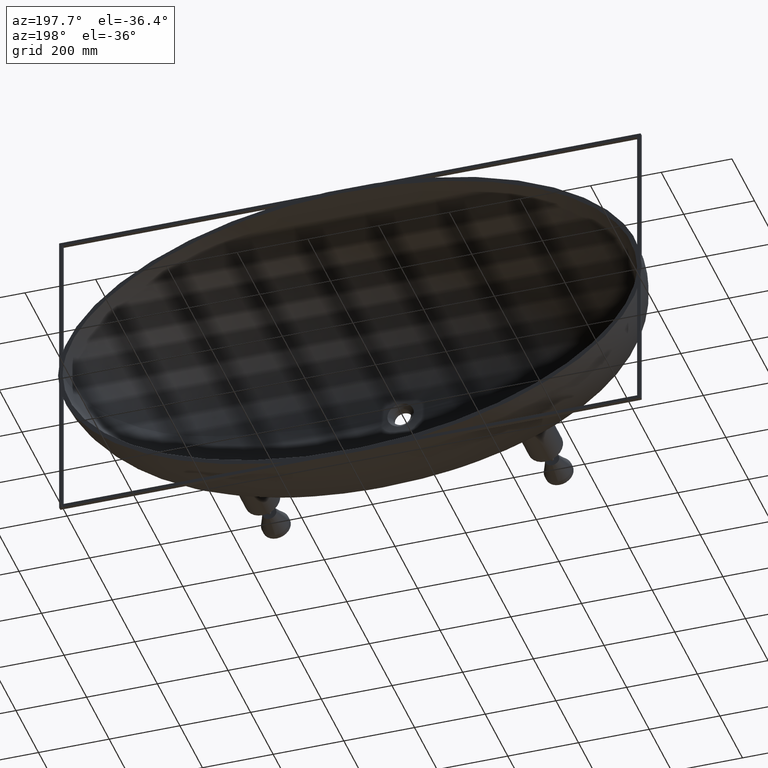
[diagram: clean part render]
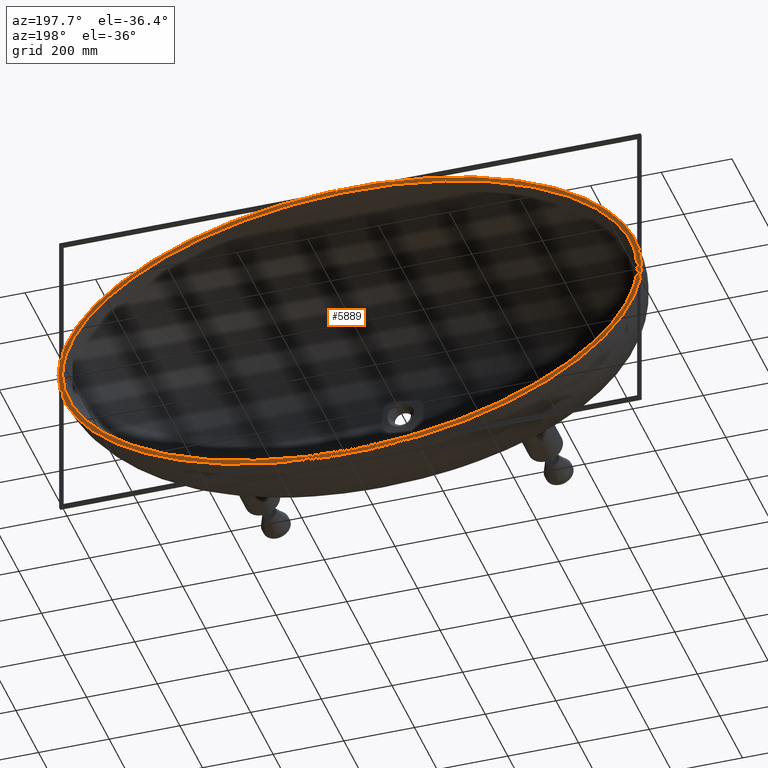
[diagram: same view with one face highlighted and labeled with its STEP entity id]
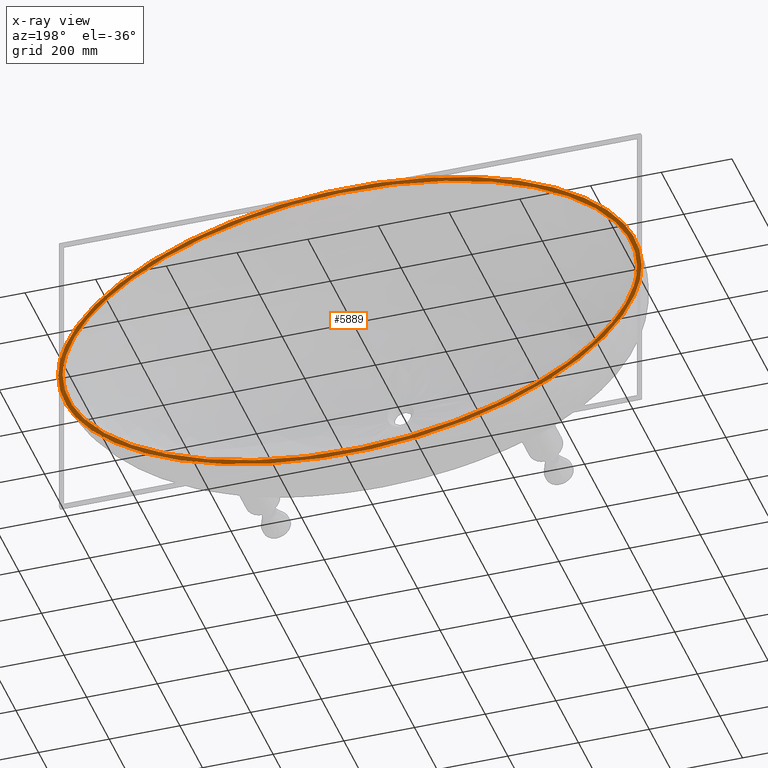
[diagram: x-ray of the same camera — body ghosted, the highlighted face saturated]
A machine part, auxiliary view. The second image highlights one B-rep face of the part: STEP entity #5889.
The next image is the same camera in x-ray: the body ghosted, the highlighted face saturated — about 0% of this face is hidden behind the body in this view.
In plain terms, the highlighted planar face has unit normal (-0, 1, 0).
Its self-contained STEP definition (entity closure, byte-faithful):
#51 = CARTESIAN_POINT ( 'NONE',  ( 638.9243610643725300, 3.921423732608520800E-014, -279.2628782434143200 ) ) ;
#135 = CARTESIAN_POINT ( 'NONE',  ( 388.2830390785371700, -3.252606517456288500E-015, -391.9663671362682200 ) ) ;
#147 = CARTESIAN_POINT ( 'NONE',  ( 778.1488945085268400, -7.568917010074882300E-014, 145.9518240305107500 ) ) ;
#215 = CARTESIAN_POINT ( 'NONE',  ( 84.47637734444256800, 1.946685000697724200E-013, -443.2662565158318000 ) ) ;
#300 = CARTESIAN_POINT ( 'NONE',  ( -211.0258075909684400, -1.453915113303062700E-013, -430.5099309524608800 ) ) ;
#381 = CARTESIAN_POINT ( 'NONE',  ( -519.6688351225064900, 9.204876444402010900E-014, -344.1266041277850100 ) ) ;
#398 = CARTESIAN_POINT ( 'NONE',  ( 776.6567206749597300, 1.291335609407061700E-013, 148.1837680807703900 ) ) ;
#466 = CARTESIAN_POINT ( 'NONE',  ( -671.8640632418805600, 1.001091299700912200E-013, -255.9587522581437900 ) ) ;
#549 = CARTESIAN_POINT ( 'NONE',  ( -787.2940190439617300, -1.027531433149461700E-012, -131.6973154153616300 ) ) ;
#633 = CARTESIAN_POINT ( 'NONE',  ( -825.5000000000000000, 3.697785493223492800E-029, -9.020562075079396900E-014 ) ) ;
#707 = CARTESIAN_POINT ( 'NONE',  ( 769.0865235351410500, 1.291335609407075800E-013, 159.2347709499249200 ) ) ;
#830 = CARTESIAN_POINT ( 'NONE',  ( 762.6816090044894700, 2.245314936581694800E-013, 167.7287642113126400 ) ) ;
#854 = ORIENTED_EDGE ( 'NONE', *, *, #20428, .F. ) ;
#888 = CARTESIAN_POINT ( 'NONE',  ( -797.3382716910023200, -3.755642444171877500E-013, 113.4096733855923300 ) ) ;
#937 = CARTESIAN_POINT ( 'NONE',  ( -728.5023967409761100, 0.0000000000000000000, 189.1202371007634600 ) ) ;
#1026 = CARTESIAN_POINT ( 'NONE',  ( 759.9659864049443700, 0.0000000000000000000, 151.1692347093767500 ) ) ;
#1065 = CARTESIAN_POINT ( 'NONE',  ( -825.2517813591537100, 1.242518162511270100E-012, 10.76159791638408000 ) ) ;
#1184 = CARTESIAN_POINT ( 'NONE',  ( 749.2796560355906200, 2.245314936581692000E-013, 184.1279338012110700 ) ) ;
#1481 = CARTESIAN_POINT ( 'NONE',  ( 742.2823194126497100, 6.152508515676409100E-014, 192.0328136103706000 ) ) ;
#1498 = ORIENTED_EDGE ( 'NONE', *, *, #21415, .T. ) ;
#1546 = CARTESIAN_POINT ( 'NONE',  ( 727.7677624212716400, 6.152508515676335900E-014, 207.3255930011599400 ) ) ;
#1869 = CARTESIAN_POINT ( 'NONE',  ( 807.1867075347555600, -7.007029234184359200E-013, -91.33779694833344800 ) ) ;
#1938 = ORIENTED_EDGE ( 'NONE', *, *, #9431, .F. ) ;
#1945 = CARTESIAN_POINT ( 'NONE',  ( 727.7176683573071600, -2.053080809202350700E-014, -207.3794612903130300 ) ) ;
#2027 = CARTESIAN_POINT ( 'NONE',  ( 618.7151436689303000, 1.279290800897117200E-013, -292.3007840433248200 ) ) ;
#2099 = FACE_OUTER_BOUND ( 'NONE', #17807, .T. ) ;
#2107 = CARTESIAN_POINT ( 'NONE',  ( 380.5977284007236100, -1.048152450250359800E-013, -394.1941923438074000 ) ) ;
#2182 = CARTESIAN_POINT ( 'NONE',  ( 21.20152455478699900, -1.187201378871627200E-014, -445.5152986556060500 ) ) ;
#2266 = CARTESIAN_POINT ( 'NONE',  ( -273.1555675873723300, -1.179069862577986100E-013, -419.9827692636932300 ) ) ;
#2352 = CARTESIAN_POINT ( 'NONE',  ( -543.9682955254099900, -5.395261060830923900E-014, -332.9625032621822200 ) ) ;
#2367 = CARTESIAN_POINT ( 'NONE',  ( 720.2505031098504600, -9.810166188509856900E-014, 214.7134538572979600 ) ) ;
#2439 = CARTESIAN_POINT ( 'NONE',  ( -696.7633391057277100, 8.915191176440979600E-014, -235.9557974924412900 ) ) ;
#2518 = CARTESIAN_POINT ( 'NONE',  ( -802.1992020487949700, -7.211765567865186100E-013, -103.3800326232273500 ) ) ;
#2915 = CARTESIAN_POINT ( 'NONE',  ( -593.5970504418641000, 0.0000000000000000000, 296.3062471289930500 ) ) ;
#3005 = CARTESIAN_POINT ( 'NONE',  ( 800.6131861182481100, 0.0000000000000000000, 74.87454044821913600 ) ) ;
#3085 = CARTESIAN_POINT ( 'NONE',  ( 704.7506869629731900, -9.810166188509671400E-014, 229.0264767028986300 ) ) ;
#3118 = CARTESIAN_POINT ( 'NONE',  ( 696.7675788502659800, 2.926939289896162700E-013, 235.9510904939582500 ) ) ;
#3783 = CARTESIAN_POINT ( 'NONE',  ( -819.5536356947581000, 2.390513324400031000E-013, 53.16680540343183000 ) ) ;
#3845 = CARTESIAN_POINT ( 'NONE',  ( 797.3851012665473900, -1.487452535816649200E-012, -113.3169023180222600 ) ) ;
#3920 = CARTESIAN_POINT ( 'NONE',  ( 704.5351703153647800, 2.084158448037096200E-013, -229.2190690986254300 ) ) ;
#3997 = CARTESIAN_POINT ( 'NONE',  ( 572.6716394735079800, -7.769663818574171700E-014, -318.7583341158683100 ) ) ;
#4028 = CARTESIAN_POINT ( 'NONE',  ( -812.5000000000000000, 0.0000000000000000000, -9.020562075079396900E-014 ) ) ;
#4072 = CARTESIAN_POINT ( 'NONE',  ( 354.9593886830235200, -1.732826122174963300E-013, -401.4182212450642700 ) ) ;
#4083 = CARTESIAN_POINT ( 'NONE',  ( -763.0544011824202900, 4.033105026703946100E-014, 167.2527923874282000 ) ) ;
#4146 = CARTESIAN_POINT ( 'NONE',  ( -21.16788563490014500, -1.115644035487586700E-013, -445.4028487832278500 ) ) ;
#4230 = CARTESIAN_POINT ( 'NONE',  ( -334.6501846052157100, 1.720628847734495500E-013, -406.5510437242429600 ) ) ;
#4314 = CARTESIAN_POINT ( 'NONE',  ( -591.4358675637258800, -2.205267218835520100E-013, -308.6097459937088800 ) ) ;
#4396 = CARTESIAN_POINT ( 'NONE',  ( -720.3775747676520500, 1.149745581944050500E-013, -214.5929278993268100 ) ) ;
#4476 = CARTESIAN_POINT ( 'NONE',  ( -808.3195744295608200, -4.809588599781479000E-013, -88.48996871297868000 ) ) ;
#4869 = CARTESIAN_POINT ( 'NONE',  ( -323.9319580293575300, 0.0000000000000000000, 398.9060634642181600 ) ) ;
#4958 = CARTESIAN_POINT ( 'NONE',  ( 812.5000000000000000, 0.0000000000000000000, 12.42180909409066900 ) ) ;
#5031 = CARTESIAN_POINT ( 'NONE',  ( -825.1093373260333700, 1.242518162511270300E-012, 13.45916058865412700 ) ) ;
#5250 = CARTESIAN_POINT ( 'NONE',  ( -825.5000000000000000, 3.697785493223492800E-029, -9.020562075079396900E-014 ) ) ;
#5376 = EDGE_LOOP ( 'NONE', ( #854, #1938 ) ) ;
#5749 = CARTESIAN_POINT ( 'NONE',  ( 680.3758781714831200, 2.926939289896167800E-013, 249.3772099265743500 ) ) ;
#5795 = CARTESIAN_POINT ( 'NONE',  ( 781.5308826153235500, 4.370029322133319300E-013, -141.0323995624442500 ) ) ;
#5808 = FACE_BOUND ( 'NONE', #5376, .T. ) ;
#5877 = CARTESIAN_POINT ( 'NONE',  ( 680.0643140338306700, 1.328079898658962800E-013, -249.6233372564875600 ) ) ;
#5889 = ADVANCED_FACE ( 'NONE', ( #5808, #2099 ), #11718, .T. ) ;
#5951 = CARTESIAN_POINT ( 'NONE',  ( 515.4814928873232700, 1.442937566306638100E-013, -346.2089224585374200 ) ) ;
#6032 = CARTESIAN_POINT ( 'NONE',  ( 293.1060575217488800, -3.394094900965851900E-013, -415.9740965487953900 ) ) ;
#6110 = CARTESIAN_POINT ( 'NONE',  ( -42.40175718080556800, 1.984089975648473100E-013, -444.9209649626387200 ) ) ;
#6125 = CARTESIAN_POINT ( 'NONE',  ( 671.9678853031942900, 3.537209587735358800E-015, 255.8793119166429900 ) ) ;
#6174 = CARTESIAN_POINT ( 'NONE',  ( -813.6559652682478800, -5.301164170720517300E-013, 73.69550218033030800 ) ) ;
#6190 = CARTESIAN_POINT ( 'NONE',  ( -395.4678017934094200, -4.065758146820477400E-016, -390.0233393288574500 ) ) ;
#6202 = CARTESIAN_POINT ( 'NONE',  ( 812.4999999999998900, 1.232595164407830900E-029, -4.597017211338538800E-014 ) ) ;
#6273 = CARTESIAN_POINT ( 'NONE',  ( -627.9475425986084900, -6.873164147200367900E-014, -286.5105975817907600 ) ) ;
#6365 = CARTESIAN_POINT ( 'NONE',  ( -742.5665431555401000, 2.738732804180946500E-013, -191.7217458844789900 ) ) ;
#6453 = CARTESIAN_POINT ( 'NONE',  ( -811.1530708444922800, 1.132560130477199900E-012, -80.91524278654101500 ) ) ;
#6471 = EDGE_CURVE ( 'NONE', #14854, #23764, #23525, .T. ) ;
#6833 = CARTESIAN_POINT ( 'NONE',  ( 661.2143119941398500, 3.537209587734500600E-015, 263.7647175719099000 ) ) ;
#6850 = CARTESIAN_POINT ( 'NONE',  ( -1.685391218337532600E-013, 0.0000000000000000000, 435.5957374718805100 ) ) ;
#6931 = CARTESIAN_POINT ( 'NONE',  ( -821.7544871164866400, 6.828415396596853000E-013, 42.73711164799402000 ) ) ;
#7018 = CARTESIAN_POINT ( 'NONE',  ( -810.0952947684272700, 2.890144178667458100E-013, 83.82460147496172500 ) ) ;
#7153 = CARTESIAN_POINT ( 'NONE',  ( 659.0513908987617200, -1.093079077772734800E-013, 265.3296604415580200 ) ) ;
#7411 = CARTESIAN_POINT ( 'NONE',  ( 654.7015736019312700, -1.093079077772729600E-013, 268.4357049742375200 ) ) ;
#7682 = CARTESIAN_POINT ( 'NONE',  ( 821.7755990938437700, -6.457999418433072900E-013, -42.61628319985253200 ) ) ;
#7696 = CARTESIAN_POINT ( 'NONE',  ( 652.5137756803073900, -6.312089522939046100E-014, 269.9774139058464500 ) ) ;
#7714 = CARTESIAN_POINT ( 'NONE',  ( 645.9302813623562500, -6.312089522939046100E-014, 274.5568848601449200 ) ) ;
#7765 = CARTESIAN_POINT ( 'NONE',  ( 769.3898149321771600, 1.921429019309442900E-012, -158.6122986344948600 ) ) ;
#7846 = CARTESIAN_POINT ( 'NONE',  ( 658.7324063786353500, 1.297078492789453400E-013, -265.5801813330347200 ) ) ;
#7859 = CARTESIAN_POINT ( 'NONE',  ( 641.5101693077919000, -2.608997002814805200E-013, 277.5521789196697000 ) ) ;
#7923 = CARTESIAN_POINT ( 'NONE',  ( 456.5444568458098600, -2.883435677725191500E-013, -369.7848041787152100 ) ) ;
#7937 = CARTESIAN_POINT ( 'NONE',  ( 628.1611832745575200, -2.608997002814812300E-013, 286.3737104951500200 ) ) ;
#7941 = B_SPLINE_CURVE_WITH_KNOTS ( 'NONE', 3,
 ( #18280, #16905, #16826, #16739, #16646, #16557, #16468, #16379, #16285, #16027, #15951, #15878, #15725, #15648, #15570, #15485, #15403, #15323, #15292, #15202, #15137, #15106, #15018, #14932, #14837 ),
 .UNSPECIFIED., .F., .F.,
 ( 4, 1, 1, 1, 1, 1, 1, 1, 1, 1, 1, 1, 1, 1, 1, 1, 1, 1, 1, 1, 1, 1, 4 ),
 ( 0.5000000000000000000, 0.5156250000000000000, 0.5312500000000000000, 0.5468750000000000000, 0.5625000000000001100, 0.5781250000000000000, 0.5937500000000000000, 0.6250000000000000000, 0.6562500000000000000, 0.6875000000000000000, 0.7187500000000000000, 0.7500000000000000000, 0.7812499999999998900, 0.8125000000000001100, 0.8437500000000000000, 0.8749999999999998900, 0.9062500000000001100, 0.9218750000000000000, 0.9375000000000000000, 0.9531250000000002200, 0.9687500000000001100, 0.9843750000000001100, 1.000000000000000000 ),
 .UNSPECIFIED. ) ;
#8000 = CARTESIAN_POINT ( 'NONE',  ( 230.8986594358406700, 1.993847795200837100E-013, -427.4646350448782100 ) ) ;
#8081 = CARTESIAN_POINT ( 'NONE',  ( -58.34897942213282100, -2.592327394412840600E-013, -444.3810824891687000 ) ) ;
#8158 = CARTESIAN_POINT ( 'NONE',  ( -455.5523673429009400, 3.336361135281019000E-013, -370.1433263000917000 ) ) ;
#8241 = CARTESIAN_POINT ( 'NONE',  ( -645.7623324204975000, 4.486564115016631700E-014, -274.6717658277729600 ) ) ;
#8331 = CARTESIAN_POINT ( 'NONE',  ( -759.7600882939142400, -1.069041553279073300E-012, -171.2895789506155200 ) ) ;
#8399 = CARTESIAN_POINT ( 'NONE',  ( 619.1438360334817600, -1.292911090688958200E-013, 292.0359248251826900 ) ) ;
#8416 = CARTESIAN_POINT ( 'NONE',  ( -815.3845940382274200, -2.137064125922550500E-015, -68.16067729612341000 ) ) ;
#8463 = CARTESIAN_POINT ( 'NONE',  ( 591.7677114369620300, -1.292911090688965800E-013, 308.4217410351312800 ) ) ;
#8481 = CARTESIAN_POINT ( 'NONE',  ( -812.5000000000000000, 2.465190328815661900E-029, -9.020562075079396900E-014 ) ) ;
#8658 = CARTESIAN_POINT ( 'NONE',  ( -824.5528991840722000, 1.611755150221808600E-012, 21.52330910202109800 ) ) ;
#8773 = ORIENTED_EDGE ( 'NONE', *, *, #6471, .T. ) ;
#8795 = CARTESIAN_POINT ( 'NONE',  ( 323.9319580293571300, 0.0000000000000000000, 398.9060634642181100 ) ) ;
#8833 = CARTESIAN_POINT ( 'NONE',  ( 573.0846318077456100, -2.145907149891938400E-013, 318.5441093818876100 ) ) ;
#9060 = CARTESIAN_POINT ( 'NONE',  ( 534.9816549496292700, -2.145907149891932100E-013, 337.4228382346290700 ) ) ;
#9080 = CARTESIAN_POINT ( 'NONE',  ( 515.5615767195047300, -3.133073227939989000E-013, 346.1788631771164500 ) ) ;
#9143 = CARTESIAN_POINT ( 'NONE',  ( 476.0614543133490300, -3.133073227939992500E-013, 362.4673827648563800 ) ) ;
#9272 = VERTEX_POINT ( 'NONE', #17104 ) ;
#9431 = EDGE_CURVE ( 'NONE', #13451, #9272, #7941, .T. ) ;
#9550 = CARTESIAN_POINT ( 'NONE',  ( 456.1534042596677000, -1.661268778790917700E-013, 369.9261590984029300 ) ) ;
#9613 = CARTESIAN_POINT ( 'NONE',  ( 815.2813119877542900, -1.205306708119188000E-012, -68.50522390613963400 ) ) ;
#9686 = CARTESIAN_POINT ( 'NONE',  ( 762.9361133765856900, -7.258280382163699400E-013, -167.1835271822338300 ) ) ;
#9702 = CARTESIAN_POINT ( 'NONE',  ( -802.0088033725186300, 9.612341643678607800E-013, 103.7966461820367100 ) ) ;
#9764 = CARTESIAN_POINT ( 'NONE',  ( 647.7958214233300400, -2.248364255191826800E-014, -273.2570974886214700 ) ) ;
#9847 = CARTESIAN_POINT ( 'NONE',  ( 416.3069502661427900, 2.341876692568689900E-014, -383.4034423827919800 ) ) ;
#9938 = CARTESIAN_POINT ( 'NONE',  ( 168.3590098544732700, -4.033232081646037400E-014, -436.0787039597369100 ) ) ;
#9958 = CARTESIAN_POINT ( 'NONE',  ( -749.3772777813111400, -1.511079672847361700E-012, 183.8173038219713100 ) ) ;
#10019 = CARTESIAN_POINT ( 'NONE',  ( -106.1255083800118100, 2.663884737796922300E-013, -441.8783359305813300 ) ) ;
#10099 = CARTESIAN_POINT ( 'NONE',  ( -500.0366666903052000, -4.147073309757042600E-015, -352.5849285928360400 ) ) ;
#10182 = CARTESIAN_POINT ( 'NONE',  ( -654.5528943278216000, -2.272148940350703200E-013, -268.5409384055003000 ) ) ;
#10197 = CARTESIAN_POINT ( 'NONE',  ( 416.0689482691437900, -1.661268778790918200E-013, 383.6404118166934700 ) ) ;
#10265 = CARTESIAN_POINT ( 'NONE',  ( -769.5166957825308600, 1.005650031023031900E-012, -158.4381580212156600 ) ) ;
#10349 = CARTESIAN_POINT ( 'NONE',  ( -821.8246150674464200, 1.741453152742750400E-012, -42.33896146097084300 ) ) ;
#10605 = CARTESIAN_POINT ( 'NONE',  ( 395.8912646144719900, -8.521829075736087600E-014, 389.8974307262878900 ) ) ;
#10658 = CARTESIAN_POINT ( 'NONE',  ( -800.6131861182482200, 0.0000000000000000000, 74.87454044821896600 ) ) ;
#10750 = CARTESIAN_POINT ( 'NONE',  ( 593.5970504418637600, 0.0000000000000000000, 296.3062471289931100 ) ) ;
#10768 = CARTESIAN_POINT ( 'NONE',  ( -811.0156397249593300, -5.301164170720517300E-013, 81.29899749366835200 ) ) ;
#10861 = CARTESIAN_POINT ( 'NONE',  ( 355.2911445668961500, -8.521829075736183500E-014, 401.3271436664083500 ) ) ;
#10976 = CARTESIAN_POINT ( 'NONE',  ( -747.6210738435263500, -9.401708372497941700E-014, 185.8461648456404000 ) ) ;
#11059 = DIRECTION ( 'NONE',  ( 1.000000000000000000, 0.0000000000000000000, 1.110223024625156200E-016 ) ) ;
#11122 = CARTESIAN_POINT ( 'NONE',  ( 334.8685189573369000, 1.621424348952065800E-013, 406.4989994128413300 ) ) ;
#11445 = CARTESIAN_POINT ( 'NONE',  ( 825.4999999999998900, 1.848892746611746400E-029, -4.597017211338538800E-014 ) ) ;
#11605 = CARTESIAN_POINT ( 'NONE',  ( 811.0264620544796800, -1.505270720895087700E-013, -81.26921172491249500 ) ) ;
#11620 = CARTESIAN_POINT ( 'NONE',  ( 293.7942618499821500, 1.621424348952056200E-013, 415.8281490917551700 ) ) ;
#11683 = CARTESIAN_POINT ( 'NONE',  ( 757.9418894281079700, -1.068152168684456700E-012, -173.5237329155084200 ) ) ;
#11718 = PLANE ( 'NONE',  #14702 ) ;
#11764 = CARTESIAN_POINT ( 'NONE',  ( 641.1531648800171300, 8.887747308949911200E-014, -277.7733343756905200 ) ) ;
#11842 = CARTESIAN_POINT ( 'NONE',  ( 395.9549076809571500, -3.252606517456514500E-015, -389.6953116972088700 ) ) ;
#11917 = CARTESIAN_POINT ( 'NONE',  ( 105.4992514249526700, 7.171997370991639600E-014, -441.9214283449935000 ) ) ;
#11934 = CARTESIAN_POINT ( 'NONE',  ( 273.1428827627407800, -1.727134060769392700E-013, 419.9865612754391000 ) ) ;
#11999 = CARTESIAN_POINT ( 'NONE',  ( -169.2662039029684100, -1.453915113303080900E-013, -435.9742699618544200 ) ) ;
#12080 = CARTESIAN_POINT ( 'NONE',  ( -514.7674290411454200, -7.163865854698048800E-014, -346.2869968518558600 ) ) ;
#12096 = CARTESIAN_POINT ( 'NONE',  ( 231.6244396450860600, -1.727134060769402800E-013, 427.3478394388578700 ) ) ;
#12160 = CARTESIAN_POINT ( 'NONE',  ( -661.0812550713321800, 1.001091299700897100E-013, -263.8614277685827000 ) ) ;
#12224 = CARTESIAN_POINT ( 'NONE',  ( 210.7573295830724200, 7.903833837419444700E-014, 430.5505014853903800 ) ) ;
#12241 = CARTESIAN_POINT ( 'NONE',  ( -781.6889579274869700, 3.614128649674188900E-013, -140.7868632643498200 ) ) ;
#12329 = CARTESIAN_POINT ( 'NONE',  ( -825.4999999999997700, -8.348777913588978900E-027, -10.72671456974527600 ) ) ;
#12345 = CARTESIAN_POINT ( 'NONE',  ( 168.8136705464548300, 7.903833837419300800E-014, 436.0279510827153300 ) ) ;
#12494 = CARTESIAN_POINT ( 'NONE',  ( -825.3111506050758000, -4.516187768857803200E-014, 9.410763904638290700 ) ) ;
#12585 = CARTESIAN_POINT ( 'NONE',  ( -769.4682921296183600, 4.040067637530415700E-013, 158.7076778429425900 ) ) ;
#12633 = CARTESIAN_POINT ( 'NONE',  ( -759.9659864049446000, 0.0000000000000000000, 151.1692347093764700 ) ) ;
#12676 = CARTESIAN_POINT ( 'NONE',  ( 147.7368082550586300, -3.756760527662328400E-014, 438.3013505501905300 ) ) ;
#12732 = CARTESIAN_POINT ( 'NONE',  ( 728.5023967409758800, 0.0000000000000000000, 189.1202371007636300 ) ) ;
#12851 = CARTESIAN_POINT ( 'NONE',  ( 121.2616560200432600, -3.756760527662242600E-014, 440.5712633752121400 ) ) ;
#12939 = CARTESIAN_POINT ( 'NONE',  ( 115.9601702466968300, -1.016439536705163400E-013, 440.9966469917135900 ) ) ;
#13115 = CARTESIAN_POINT ( 'NONE',  ( 105.3443126028224100, -1.016439536705160800E-013, 441.7903251156461700 ) ) ;
#13349 = CARTESIAN_POINT ( 'NONE',  ( 100.0376574542599400, -9.611452259083993000E-014, 442.1580363736665600 ) ) ;
#13451 = VERTEX_POINT ( 'NONE', #6202 ) ;
#13580 = CARTESIAN_POINT ( 'NONE',  ( 808.1816054924270200, -1.696356271597977100E-012, -88.84192005606550400 ) ) ;
#13664 = CARTESIAN_POINT ( 'NONE',  ( 742.3763921406321100, -2.053080809202271800E-014, -191.9326053971723000 ) ) ;
#13699 = CARTESIAN_POINT ( 'NONE',  ( 84.12697295272640500, -9.611452259084053600E-014, 443.1742814198654500 ) ) ;
#13746 = CARTESIAN_POINT ( 'NONE',  ( 627.7546262957594100, 3.921423732608487400E-014, -286.6339377843436300 ) ) ;
#13824 = CARTESIAN_POINT ( 'NONE',  ( 385.7214443457174900, -1.048152450250363900E-013, -392.7151721092704400 ) ) ;
#13857 = CARTESIAN_POINT ( 'NONE',  ( 73.52980450984604500, 2.520770051028856500E-014, 443.7361544037182200 ) ) ;
#13901 = CARTESIAN_POINT ( 'NONE',  ( 42.32751432991282300, 1.946685000697716100E-013, -445.0631953120812300 ) ) ;
#13955 = B_SPLINE_CURVE_WITH_KNOTS ( 'NONE', 3,
 ( #25081, #17435, #19332, #7682, #21236, #9613, #23181, #11605, #25159, #13580, #1869, #15586, #3845, #17506, #5795, #19405, #7765, #21312, #9686, #23257, #11683, #25227, #13664, #1945, #15664, #3920, #17583, #5877, #19477, #7846, #21399, #9764, #23337, #11764, #51, #13746, #2027, #15743, #3997, #17655, #5951, #19552, #7923, #21474, #9847, #23419, #11842, #135, #13824, #2107, #15821, #4072, #17725, #6032, #19630, #8000, #21546, #9938, #23503, #11917, #215, #13901, #2182, #15892, #4146, #17795, #6110, #19701, #8081, #21628, #10019, #23586, #11999, #300, #13983, #2266, #15965, #4230, #17881, #6190, #19781, #8158, #21711, #10099, #23666, #12080, #381, #14066, #2352, #16041, #4314, #17963, #6273, #19869, #8241, #21794, #10182, #23747, #12160, #466, #14154, #2439, #16120, #4396, #18040, #6365, #19947, #8331, #21875, #10265, #23842, #12241, #549, #14242, #2518, #16211, #4476, #18129, #6453, #20031, #8416, #21961, #10349, #23932, #12329, #633 ),
 .UNSPECIFIED., .F., .F.,
 ( 4, 2, 2, 2, 2, 2, 2, 2, 2, 2, 2, 2, 2, 2, 2, 2, 2, 2, 2, 2, 2, 2, 2, 2, 2, 2, 2, 2, 2, 2, 2, 2, 2, 2, 2, 2, 2, 2, 2, 2, 2, 2, 2, 2, 2, 2, 2, 2, 2, 2, 2, 2, 2, 2, 2, 2, 2, 2, 2, 2, 2, 2, 4 ),
 ( 6.162975822039154000E-033, 0.03195403933798911900, 0.06390807867597825300, 0.07988509834497283000, 0.08787360817947016700, 0.09586211801396746200, 0.1278161573519565600, 0.1597701966899456300, 0.1757472163589400800, 0.1837357261934373100, 0.1917242360279345400, 0.2236782753659235500, 0.2556323147039125700, 0.2875863540419016400, 0.3195403933798906500, 0.3355174130488849900, 0.3435059228833822200, 0.3514944327178794500, 0.3834484720558688500, 0.4473565507318472700, 0.5112646294078256900, 0.5751727080838041600, 0.6071267474217932900, 0.6231037670907878500, 0.6310922769252850200, 0.6390807867597821900, 0.7029888654357605600, 0.7668969441117388100, 0.8308050227877169500, 0.8947131014636952000, 0.9586211801396734600, 1.022529258815651600, 1.054483298153640700, 1.070460317822635300, 1.086437337491629900, 1.150345416167608100, 1.214253494843585900, 1.278161573519563900, 1.342069652195542200, 1.405977730871520700, 1.469885809547498900, 1.533793888223477200, 1.549770907892471700, 1.565747927561466500, 1.597701966899455900, 1.661610045575434600, 1.693564084913423900, 1.709541104582418700, 1.717529614416916300, 1.725518124251413700, 1.757472163589403100, 1.789426202927392600, 1.821380242265382000, 1.853334281603371300, 1.869311301272365900, 1.885288320941360200, 1.917242360279349100, 1.949196399617338000, 1.957184909451835200, 1.965173419286332600, 1.981150438955327200, 2.013104478293315800, 2.045058517631305000 ),
 .UNSPECIFIED. ) ;
#13983 = CARTESIAN_POINT ( 'NONE',  ( -231.8049359694440200, -1.179069862577986100E-013, -427.3173729705915200 ) ) ;
#14066 = CARTESIAN_POINT ( 'NONE',  ( -534.3026544291447000, 9.204876444401864500E-014, -337.5250329541224200 ) ) ;
#14154 = CARTESIAN_POINT ( 'NONE',  ( -680.3015482589655700, 8.915191176440969500E-014, -249.4368518822604100 ) ) ;
#14242 = CARTESIAN_POINT ( 'NONE',  ( -797.5491449031281900, -1.027531433149457300E-012, -112.9939021802814700 ) ) ;
#14310 = CARTESIAN_POINT ( 'NONE',  ( 41.76768721925358100, 2.520770051028796900E-014, 445.0804268036712300 ) ) ;
#14574 = CARTESIAN_POINT ( 'NONE',  ( 20.63206792672306400, -7.838781707070272800E-014, 445.5221589555770300 ) ) ;
#14620 = CARTESIAN_POINT ( 'NONE',  ( -676.6033954332068600, 0.0000000000000000000, 238.5028095780793900 ) ) ;
#14702 = AXIS2_PLACEMENT_3D ( 'NONE', #4028, #17375, #11059 ) ;
#14712 = CARTESIAN_POINT ( 'NONE',  ( 783.9352188932701900, 0.0000000000000000000, 112.9219503817796800 ) ) ;
#14837 = CARTESIAN_POINT ( 'NONE',  ( -812.5000000000000000, 2.465190328815661900E-029, -9.020562075079396900E-014 ) ) ;
#14854 = VERTEX_POINT ( 'NONE', #23950 ) ;
#14908 = CARTESIAN_POINT ( 'NONE',  ( -21.56197284062006500, -7.838781707070154100E-014, 445.5089588128566900 ) ) ;
#14932 = CARTESIAN_POINT ( 'NONE',  ( -812.5000000000000000, 0.0000000000000000000, -12.42180909409075300 ) ) ;
#15018 = CARTESIAN_POINT ( 'NONE',  ( -810.3672761930107500, 0.0000000000000000000, -37.26542728227217100 ) ) ;
#15084 = CARTESIAN_POINT ( 'NONE',  ( -807.1744417171059900, 9.612341643678615800E-013, 91.36839929772266100 ) ) ;
#15106 = CARTESIAN_POINT ( 'NONE',  ( -800.6131861182481100, 0.0000000000000000000, -74.87454044821906500 ) ) ;
#15107 = CARTESIAN_POINT ( 'NONE',  ( -42.62039835474715900, 1.772670552013754600E-014, 445.0540734354871700 ) ) ;
#15137 = CARTESIAN_POINT ( 'NONE',  ( -783.9352188932703000, 0.0000000000000000000, -112.9219503817795000 ) ) ;
#15202 = CARTESIAN_POINT ( 'NONE',  ( -759.9659864049444900, 0.0000000000000000000, -151.1692347093766100 ) ) ;
#15292 = CARTESIAN_POINT ( 'NONE',  ( -728.5023967409758800, 0.0000000000000000000, -189.1202371007634900 ) ) ;
#15323 = CARTESIAN_POINT ( 'NONE',  ( -676.6033954332068600, 0.0000000000000000000, -238.5028095780795600 ) ) ;
#15403 = CARTESIAN_POINT ( 'NONE',  ( -593.5970504418636400, 0.0000000000000000000, -296.3062471289930500 ) ) ;
#15485 = CARTESIAN_POINT ( 'NONE',  ( -468.7161643363668900, 0.0000000000000000000, -354.7800054689085400 ) ) ;
#15570 = CARTESIAN_POINT ( 'NONE',  ( -323.9319580293571300, 0.0000000000000000000, -398.9060634642182800 ) ) ;
#15586 = CARTESIAN_POINT ( 'NONE',  ( 802.0423634999726800, -7.007029234184365300E-013, -103.7202246795437900 ) ) ;
#15600 = CARTESIAN_POINT ( 'NONE',  ( -84.66068501055878000, 1.772670552013855600E-014, 443.2549957978795300 ) ) ;
#15648 = CARTESIAN_POINT ( 'NONE',  ( -165.4508975673361100, 0.0000000000000000000, -426.3085250562386400 ) ) ;
#15664 = CARTESIAN_POINT ( 'NONE',  ( 720.1378060629959900, 2.084158448037097400E-013, -214.8238106783531700 ) ) ;
#15725 = CARTESIAN_POINT ( 'NONE',  ( 3.057794233543944600E-014, 0.0000000000000000000, -435.5957374718805100 ) ) ;
#15743 = CARTESIAN_POINT ( 'NONE',  ( 591.3146664240442800, 1.279290800897118900E-013, -308.6757646072748600 ) ) ;
#15821 = CARTESIAN_POINT ( 'NONE',  ( 378.0348240635742600, -1.732826122174959700E-013, -394.9246435519814300 ) ) ;
#15878 = CARTESIAN_POINT ( 'NONE',  ( 165.4508975673363100, 0.0000000000000000000, -426.3085250562386400 ) ) ;
#15892 = CARTESIAN_POINT ( 'NONE',  ( -10.56573389605923200, -1.187201378871605300E-014, -445.5157978176645200 ) ) ;
#15907 = CARTESIAN_POINT ( 'NONE',  ( -105.6425479602641500, -2.195509399283152300E-013, 441.9108245380830900 ) ) ;
#15951 = CARTESIAN_POINT ( 'NONE',  ( 323.9319580293571900, 0.0000000000000000000, -398.9060634642180500 ) ) ;
#15965 = CARTESIAN_POINT ( 'NONE',  ( -293.7271156407141500, 1.720628847734516200E-013, -415.8409284764577500 ) ) ;
#16027 = CARTESIAN_POINT ( 'NONE',  ( 468.7161643363668900, 0.0000000000000000000, -354.7800054689085400 ) ) ;
#16041 = CARTESIAN_POINT ( 'NONE',  ( -572.6778164774266300, -5.395261060830955500E-014, -318.7606059473189900 ) ) ;
#16120 = CARTESIAN_POINT ( 'NONE',  ( -704.7870675554729600, 1.149745581944040900E-013, -228.9960324567421700 ) ) ;
#16138 = CARTESIAN_POINT ( 'NONE',  ( -147.5284713558863200, -2.195509399283148000E-013, 438.3187940508692600 ) ) ;
#16211 = CARTESIAN_POINT ( 'NONE',  ( -807.3280865505544200, -7.211765567865201200E-013, -90.98733399251160800 ) ) ;
#16285 = CARTESIAN_POINT ( 'NONE',  ( 593.5970504418639800, 0.0000000000000000000, -296.3062471289930500 ) ) ;
#16287 = CARTESIAN_POINT ( 'NONE',  ( -168.4324717992532200, -8.001412032943053000E-014, 436.0702378846668800 ) ) ;
#16379 = CARTESIAN_POINT ( 'NONE',  ( 676.6033954332066300, 0.0000000000000000000, -238.5028095780793400 ) ) ;
#16468 = CARTESIAN_POINT ( 'NONE',  ( 728.5023967409760000, 0.0000000000000000000, -189.1202371007635700 ) ) ;
#16470 = CARTESIAN_POINT ( 'NONE',  ( -210.1597790319566700, -8.001412032943036600E-014, 430.6358564329144100 ) ) ;
#16536 = CARTESIAN_POINT ( 'NONE',  ( -230.9832094976754300, 4.065758146820613200E-014, 427.4514676674332900 ) ) ;
#16557 = CARTESIAN_POINT ( 'NONE',  ( 759.9659864049444900, 0.0000000000000000000, -151.1692347093764700 ) ) ;
#16606 = CARTESIAN_POINT ( 'NONE',  ( -468.7161643363670000, 0.0000000000000000000, 354.7800054689083700 ) ) ;
#16646 = CARTESIAN_POINT ( 'NONE',  ( 783.9352188932701900, 0.0000000000000000000, -112.9219503817794000 ) ) ;
#16701 = CARTESIAN_POINT ( 'NONE',  ( 810.3672761930109800, 0.0000000000000000000, 37.26542728227220600 ) ) ;
#16739 = CARTESIAN_POINT ( 'NONE',  ( 800.6131861182478800, 0.0000000000000000000, -74.87454044821896600 ) ) ;
#16826 = CARTESIAN_POINT ( 'NONE',  ( 810.3672761930109800, 0.0000000000000000000, -37.26542728227207800 ) ) ;
#16905 = CARTESIAN_POINT ( 'NONE',  ( 812.5000000000000000, 0.0000000000000000000, -12.42180909409076000 ) ) ;
#17104 = CARTESIAN_POINT ( 'NONE',  ( -812.5000000000000000, 2.465190328815661900E-029, -9.020562075079396900E-014 ) ) ;
#17135 = CARTESIAN_POINT ( 'NONE',  ( -272.5456571929281000, 4.065758146820588000E-014, 420.1022175021345200 ) ) ;
#17375 = DIRECTION ( 'NONE',  ( -0.0000000000000000000, 1.000000000000000000, 0.0000000000000000000 ) ) ;
#17435 = CARTESIAN_POINT ( 'NONE',  ( 825.5000000000000000, 1.000937215382823200E-013, -10.82083299571365700 ) ) ;
#17506 = CARTESIAN_POINT ( 'NONE',  ( 787.1293771046080100, -1.487452535816647200E-012, -131.9729990526927800 ) ) ;
#17583 = CARTESIAN_POINT ( 'NONE',  ( 696.5118216303633300, 1.328079898658964100E-013, -236.1693372742893200 ) ) ;
#17655 = CARTESIAN_POINT ( 'NONE',  ( 534.7552128229788200, -7.769663818574287800E-014, -337.5252681925478000 ) ) ;
#17725 = CARTESIAN_POINT ( 'NONE',  ( 334.3819698792315800, -3.394094900965872100E-013, -406.6195815031562700 ) ) ;
#17739 = CARTESIAN_POINT ( 'NONE',  ( -754.5758770985363500, 4.033105026703818000E-014, 177.6516970192909600 ) ) ;
#17795 = CARTESIAN_POINT ( 'NONE',  ( -37.09082445958044600, -1.115644035487584100E-013, -445.0627752413852800 ) ) ;
#17807 = EDGE_LOOP ( 'NONE', ( #8773, #1498 ) ) ;
#17813 = CARTESIAN_POINT ( 'NONE',  ( -825.4531500162091800, -4.516187768857817700E-014, 5.368144164695845400 ) ) ;
#17881 = CARTESIAN_POINT ( 'NONE',  ( -355.0014607591251100, -4.065758146832905900E-016, -401.4018804631564900 ) ) ;
#17963 = CARTESIAN_POINT ( 'NONE',  ( -618.9032851946122900, -2.205267218835509000E-013, -292.1850971906121700 ) ) ;
#18040 = CARTESIAN_POINT ( 'NONE',  ( -727.9449169374057600, 2.738732804181002600E-013, -207.1501846126290900 ) ) ;
#18109 = CARTESIAN_POINT ( 'NONE',  ( -293.2847014360569900, -4.042176749569076900E-013, 415.9376698693566800 ) ) ;
#18129 = CARTESIAN_POINT ( 'NONE',  ( -810.2313370212190200, -4.809588599781477000E-013, -83.45614029656262300 ) ) ;
#18280 = CARTESIAN_POINT ( 'NONE',  ( 812.4999999999998900, 1.232595164407830900E-029, -4.597017211338538800E-014 ) ) ;
#18283 = CARTESIAN_POINT ( 'NONE',  ( -324.3249035782427000, -4.042176749569074300E-013, 408.8967875315619300 ) ) ;
#18403 = CARTESIAN_POINT ( 'NONE',  ( -812.5000000000000000, 0.0000000000000000000, 12.42180909409066000 ) ) ;
#18478 = CARTESIAN_POINT ( 'NONE',  ( -334.6601992900348300, -9.896055329361523800E-014, 406.4169687368017200 ) ) ;
#18493 = CARTESIAN_POINT ( 'NONE',  ( -165.4508975673365100, 0.0000000000000000000, 426.3085250562386400 ) ) ;
#18580 = CARTESIAN_POINT ( 'NONE',  ( 812.4999999999998900, 1.232595164407830900E-029, -4.597017211338538800E-014 ) ) ;
#18596 = CARTESIAN_POINT ( 'NONE',  ( -350.1452338277538800, -9.896055329361391200E-014, 402.4892244255560200 ) ) ;
#18685 = CARTESIAN_POINT ( 'NONE',  ( -781.4767448431259700, 4.040067637530427800E-013, 141.1155602325179600 ) ) ;
#18872 = CARTESIAN_POINT ( 'NONE',  ( -355.3071980197815400, 1.102633609417752800E-013, 401.1444140144615700 ) ) ;
#19026 = CARTESIAN_POINT ( 'NONE',  ( -752.8554794895569600, -1.511079672847358500E-012, 179.7191721496732300 ) ) ;
#19045 = CARTESIAN_POINT ( 'NONE',  ( -365.6008532372048300, 1.102633609417762300E-013, 398.3904154462246700 ) ) ;
#19131 = CARTESIAN_POINT ( 'NONE',  ( -370.7341074470170400, 2.933037927116405300E-013, 396.9808796138929100 ) ) ;
#19209 = CARTESIAN_POINT ( 'NONE',  ( -396.3316255323181300, 2.933037927116413900E-013, 389.7683939703430800 ) ) ;
#19271 = CARTESIAN_POINT ( 'NONE',  ( -416.5903392171475200, 3.504683522559457500E-014, 383.4727235268180200 ) ) ;
#19332 = CARTESIAN_POINT ( 'NONE',  ( 824.7357058659705400, -6.457999418433072900E-013, -21.50477915115259000 ) ) ;
#19405 = CARTESIAN_POINT ( 'NONE',  ( 772.5039835323438000, 4.370029322133322300E-013, -154.2623627689263500 ) ) ;
#19477 = CARTESIAN_POINT ( 'NONE',  ( 671.6407038210171500, 1.297078492789455400E-013, -256.1276803596328500 ) ) ;
#19552 = CARTESIAN_POINT ( 'NONE',  ( 476.3768310179105500, 1.442937566306645500E-013, -362.3402788473212000 ) ) ;
#19630 = CARTESIAN_POINT ( 'NONE',  ( 272.4076950470781100, 1.993847795200842700E-013, -420.1283861538440200 ) ) ;
#19701 = CARTESIAN_POINT ( 'NONE',  ( -53.03022957188690600, 1.984089975648473100E-013, -444.5801447024486500 ) ) ;
#19713 = CARTESIAN_POINT ( 'NONE',  ( -456.6358388097145800, 3.504683522559393100E-014, 369.7501331284732400 ) ) ;
#19766 = CARTESIAN_POINT ( 'NONE',  ( -476.4221342947709000, -6.513344551206635100E-014, 362.3220375903425700 ) ) ;
#19781 = CARTESIAN_POINT ( 'NONE',  ( -415.5830508543315900, 3.336361135281042200E-013, -383.7948037292356400 ) ) ;
#19869 = CARTESIAN_POINT ( 'NONE',  ( -641.3314751857171800, -6.873164147200346400E-014, -277.6723464808670200 ) ) ;
#19947 = CARTESIAN_POINT ( 'NONE',  ( -749.6209189209352000, -1.069041553279067300E-012, -183.7361475040592300 ) ) ;
#19964 = CARTESIAN_POINT ( 'NONE',  ( -825.5000000000000000, 2.670622856216954000E-029, 2.680452603408199200 ) ) ;
#20031 = CARTESIAN_POINT ( 'NONE',  ( -813.7915845680016700, 1.132560130477199700E-012, -73.27789301329593700 ) ) ;
#20102 = CARTESIAN_POINT ( 'NONE',  ( -515.4718432620208000, -6.513344551206707000E-014, 346.2124555527556700 ) ) ;
#20273 = CARTESIAN_POINT ( 'NONE',  ( -787.0723003482312400, -3.755642444171892600E-013, 132.0691658915045800 ) ) ;
#20408 = CARTESIAN_POINT ( 'NONE',  ( 165.4508975673363100, 0.0000000000000000000, 426.3085250562388100 ) ) ;
#20428 = EDGE_CURVE ( 'NONE', #9272, #13451, #23095, .T. ) ;
#21041 = CARTESIAN_POINT ( 'NONE',  ( -534.7366142376560000, 9.883858054921017700E-014, 337.5342230761998500 ) ) ;
#21236 = CARTESIAN_POINT ( 'NONE',  ( 819.5832142099474100, -1.205306708119188200E-012, -53.04445501178825100 ) ) ;
#21237 = CARTESIAN_POINT ( 'NONE',  ( 825.4999999999998900, 1.848892746611746400E-029, -4.597017211338538800E-014 ) ) ;
#21312 = CARTESIAN_POINT ( 'NONE',  ( 764.5683132707653200, 1.921429019309444600E-012, -165.0514369668964900 ) ) ;
#21314 = CARTESIAN_POINT ( 'NONE',  ( 825.5000000000001100, 1.000937215382836800E-013, 2.703971452378708000 ) ) ;
#21346 = CARTESIAN_POINT ( 'NONE',  ( -825.0263234762670700, 1.611755150221809000E-012, 14.80533528409630300 ) ) ;
#21399 = CARTESIAN_POINT ( 'NONE',  ( 654.3840657360800600, -2.248364255191797800E-014, -268.6802407913188500 ) ) ;
#21400 = CARTESIAN_POINT ( 'NONE',  ( 825.4522539470225400, -2.875765529690137100E-014, 5.405592834652507500 ) ) ;
#21415 = EDGE_CURVE ( 'NONE', #23764, #14854, #13955, .T. ) ;
#21430 = CARTESIAN_POINT ( 'NONE',  ( -808.1751973549015700, 2.890144178667453100E-013, 88.85825603271015900 ) ) ;
#21474 = CARTESIAN_POINT ( 'NONE',  ( 426.4140696216920200, -2.883435677725199000E-013, -380.1046790557716700 ) ) ;
#21546 = CARTESIAN_POINT ( 'NONE',  ( 210.0879532454237100, -4.033232081646102400E-014, -430.6463081669254500 ) ) ;
#21547 = CARTESIAN_POINT ( 'NONE',  ( 825.2621853673263100, -2.875765529690016600E-014, 10.79267008651320300 ) ) ;
#21628 = CARTESIAN_POINT ( 'NONE',  ( -84.94653358837322800, -2.592327394412841600E-013, -443.2423616343627400 ) ) ;
#21630 = CARTESIAN_POINT ( 'NONE',  ( 825.1198630854553400, -3.194780636938643800E-014, 13.48005673670534000 ) ) ;
#21711 = CARTESIAN_POINT ( 'NONE',  ( -475.4062476402436900, -4.147073309759458900E-015, -362.7195287074772000 ) ) ;
#21713 = CARTESIAN_POINT ( 'NONE',  ( 824.5525612866429100, -3.194780636938983900E-014, 21.52395967973333100 ) ) ;
#21726 = CARTESIAN_POINT ( 'NONE',  ( -572.6736905184648100, 9.883858054921002500E-014, 318.7575694147620300 ) ) ;
#21794 = CARTESIAN_POINT ( 'NONE',  ( -652.3605667768181300, 4.486564115016451200E-014, -270.0849064024895900 ) ) ;
#21796 = CARTESIAN_POINT ( 'NONE',  ( 823.9872025160046900, -7.502753148982544100E-013, 26.86221320170596600 ) ) ;
#21875 = CARTESIAN_POINT ( 'NONE',  ( -763.0658738856512900, 1.005650031023035100E-012, -167.0624771620510400 ) ) ;
#21877 = CARTESIAN_POINT ( 'NONE',  ( 822.4914601479227900, -7.502753148982602700E-013, 37.49123199795267400 ) ) ;
#21892 = CARTESIAN_POINT ( 'NONE',  ( -591.3463516789458900, 1.093688941494741600E-014, 308.6600012441810500 ) ) ;
#21961 = CARTESIAN_POINT ( 'NONE',  ( -819.6550132216575500, -2.137064125931115500E-015, -52.73044312118895500 ) ) ;
#22071 = CARTESIAN_POINT ( 'NONE',  ( -614.2427661802819300, 1.093688941494682200E-014, 294.9727492112640400 ) ) ;
#22141 = CARTESIAN_POINT ( 'NONE',  ( 821.5614550559652100, -1.142236634866601300E-013, 42.78204651425392100 ) ) ;
#22213 = CARTESIAN_POINT ( 'NONE',  ( -618.7997798727498100, -2.948487808074321700E-013, 292.1819176907403100 ) ) ;
#22232 = CARTESIAN_POINT ( 'NONE',  ( 819.8989082639964200, -1.142236634866709800E-013, 50.68346253117062600 ) ) ;
#22248 = CARTESIAN_POINT ( 'NONE',  ( -625.6002320610286900, -2.948487808074322700E-013, 287.9116087034764700 ) ) ;
#22261 = CARTESIAN_POINT ( 'NONE',  ( -810.3672761930107500, 0.0000000000000000000, 37.26542728227206400 ) ) ;
#22338 = CARTESIAN_POINT ( 'NONE',  ( -627.8594214548688800, -2.762682660764685900E-014, 286.4752571244389400 ) ) ;
#22352 = CARTESIAN_POINT ( 'NONE',  ( 468.7161643363669400, 0.0000000000000000000, 354.7800054689085400 ) ) ;
#22627 = CARTESIAN_POINT ( 'NONE',  ( -632.3560418080654700, -2.762682660764626300E-014, 283.5802393557229400 ) ) ;
#22811 = CARTESIAN_POINT ( 'NONE',  ( -634.5944104258028300, 6.240938755369690400E-015, 282.1209859616316700 ) ) ;
#23042 = CARTESIAN_POINT ( 'NONE',  ( -823.9873975207726700, 6.828415396596848000E-013, 26.85640347916091400 ) ) ;
#23095 = B_SPLINE_CURVE_WITH_KNOTS ( 'NONE', 3,
 ( #8481, #18403, #22261, #10658, #24231, #12633, #937, #14620, #2915, #16606, #4869, #18493, #6850, #20408, #8795, #22352, #10750, #24322, #12732, #1026, #14712, #3005, #16701, #4958, #18580 ),
 .UNSPECIFIED., .F., .F.,
 ( 4, 1, 1, 1, 1, 1, 1, 1, 1, 1, 1, 1, 1, 1, 1, 1, 1, 1, 1, 1, 1, 1, 4 ),
 ( 0.0000000000000000000, 0.01562500000000000000, 0.03125000000000000000, 0.04687500000000000000, 0.06250000000000000000, 0.07812500000000000000, 0.09375000000000000000, 0.1250000000000000000, 0.1562500000000000000, 0.1875000000000000000, 0.2187500000000000000, 0.2500000000000000000, 0.2812500000000000000, 0.3125000000000000000, 0.3437500000000000000, 0.3750000000000000000, 0.4062500000000000000, 0.4218750000000000000, 0.4375000000000000000, 0.4531249999999998900, 0.4687500000000000000, 0.4843750000000000000, 0.5000000000000000000 ),
 .UNSPECIFIED. ) ;
#23115 = CARTESIAN_POINT ( 'NONE',  ( -815.2552028014980600, 2.390513324400036000E-013, 68.59092002327055600 ) ) ;
#23181 = CARTESIAN_POINT ( 'NONE',  ( 813.6782515959904500, -1.505270720895086100E-013, -73.62852859451403700 ) ) ;
#23182 = CARTESIAN_POINT ( 'NONE',  ( 819.3000641592333300, -1.755877700318002100E-012, 53.31145754601780600 ) ) ;
#23196 = CARTESIAN_POINT ( 'NONE',  ( -645.7357100511289900, 6.240938755369770900E-015, 274.7650092207291000 ) ) ;
#23257 = CARTESIAN_POINT ( 'NONE',  ( 759.6228436496533000, -7.258280382163668100E-013, -171.4198115223162500 ) ) ;
#23258 = CARTESIAN_POINT ( 'NONE',  ( 818.0137372293777400, -1.755877700318001100E-012, 58.55591603813611800 ) ) ;
#23337 = CARTESIAN_POINT ( 'NONE',  ( 645.5887799427487200, 8.887747308949935200E-014, -274.7705059762059800 ) ) ;
#23338 = CARTESIAN_POINT ( 'NONE',  ( 817.3254813682318600, 1.145120782051948100E-013, 61.17467238313594200 ) ) ;
#23419 = CARTESIAN_POINT ( 'NONE',  ( 401.0544090012127200, 2.341876692568689900E-014, -388.1478313794456800 ) ) ;
#23503 = CARTESIAN_POINT ( 'NONE',  ( 147.4406084038009800, 7.171997370991611800E-014, -438.3280046338060200 ) ) ;
#23505 = CARTESIAN_POINT ( 'NONE',  ( 813.6878728019348700, 1.145120782052015000E-013, 74.16061067091507700 ) ) ;
#23525 = B_SPLINE_CURVE_WITH_KNOTS ( 'NONE', 3,
 ( #5250, #19964, #17813, #12494, #1065, #5031, #21346, #8658, #23042, #6931, #3783, #23115, #6174, #10768, #7018, #21430, #15084, #9702, #888, #20273, #18685, #12585, #4083, #17739, #19026, #9958, #10976, #24878, #24711, #24481, #24003, #23951, #23914, #23766, #23679, #23602, #23196, #22811, #22627, #22338, #22248, #22213, #22071, #21892, #21726, #21041, #20102, #19766, #19713, #19271, #19209, #19131, #19045, #18872, #18596, #18478, #18283, #18109, #17135, #16536, #16470, #16287, #16138, #15907, #15600, #15107, #14908, #14574, #14310, #13857, #13699, #13349, #13115, #12939, #12851, #12676, #12345, #12224, #12096, #11934, #11620, #11122, #10861, #10605, #10197, #9550, #9143, #9080, #9060, #8833, #8463, #8399, #7937, #7859, #7714, #7696, #7411, #7153, #6833, #6125, #5749, #3118, #3085, #2367, #1546, #1481, #1184, #830, #707, #398, #147, #25228, #25160, #24110, #24022, #23933, #23749, #23587, #23505, #23338, #23258, #23182, #22232, #22141, #21877, #21796, #21713, #21630, #21547, #21400, #21314, #21237 ),
 .UNSPECIFIED., .F., .F.,
 ( 4, 2, 2, 2, 2, 2, 2, 2, 2, 2, 2, 2, 2, 2, 2, 2, 2, 2, 2, 2, 2, 2, 2, 2, 2, 2, 2, 2, 2, 2, 2, 2, 2, 2, 2, 2, 2, 2, 2, 2, 2, 2, 2, 2, 2, 2, 2, 2, 2, 2, 2, 2, 2, 2, 2, 2, 2, 2, 2, 2, 2, 2, 2, 2, 2, 4 ),
 ( 2.045058517631305000, 2.053043375191932400, 2.057035803972246100, 2.061028232752560200, 2.076997947873815000, 2.108937378116325000, 2.124907093237580200, 2.132891950798207600, 2.140876808358835400, 2.172816238601345000, 2.204755668843855000, 2.236695099086365000, 2.244679956646992400, 2.252664814207620200, 2.268634529328875000, 2.300573959571384600, 2.332513389813894100, 2.364452820056403700, 2.396392250298913700, 2.404377107859541100, 2.412361965420168500, 2.428331680541423700, 2.492210541026444600, 2.556089401511465000, 2.619968261996485900, 2.683847122481506800, 2.699816837602762000, 2.715786552724017300, 2.747725982966527700, 2.811604843451548600, 2.875483703936569900, 2.939362564421590800, 3.003241424906611700, 3.067120285391633100, 3.130999145876653500, 3.162938576119164400, 3.178908291240419200, 3.194878006361674800, 3.258756866846695700, 3.322635727331716600, 3.386514587816738000, 3.450393448301759300, 3.514272308786780200, 3.578151169271801100, 3.642030029756822400, 3.705908890241843800, 3.737848320484354200, 3.753818035605609000, 3.761802893166236400, 3.769787750726863800, 3.801727180969372900, 3.833666611211882000, 3.865606041454390700, 3.897545471696899400, 3.929484901939408000, 3.937469759500035400, 3.945454617060662400, 3.961424332181916300, 3.993363762424424900, 4.025303192666933100, 4.033288050227560500, 4.041272907788187000, 4.057242622909441800, 4.073212338030694800, 4.081197195591322200, 4.089182053151949600 ),
 .UNSPECIFIED. ) ;
#23586 = CARTESIAN_POINT ( 'NONE',  ( -148.2854296463826500, 2.663884737796874800E-013, -438.2446838785779700 ) ) ;
#23587 = CARTESIAN_POINT ( 'NONE',  ( 810.1387323623359900, 5.185874516269747600E-013, 84.26495841043690400 ) ) ;
#23602 = CARTESIAN_POINT ( 'NONE',  ( -654.4873280888822400, 4.290391284432485900E-014, 268.6895315485696800 ) ) ;
#23666 = CARTESIAN_POINT ( 'NONE',  ( -504.9533935001575700, -7.163865854697970500E-014, -350.5152181977665600 ) ) ;
#23679 = CARTESIAN_POINT ( 'NONE',  ( -671.6415664554388100, 4.290391284432454900E-014, 256.1262860345466900 ) ) ;
#23747 = CARTESIAN_POINT ( 'NONE',  ( -658.9128677751745000, -2.272148940350700200E-013, -265.4294481702432900 ) ) ;
#23749 = CARTESIAN_POINT ( 'NONE',  ( 801.9221146180480000, 5.185874516269710200E-013, 103.9759519065822200 ) ) ;
#23764 = VERTEX_POINT ( 'NONE', #11445 ) ;
#23766 = CARTESIAN_POINT ( 'NONE',  ( -680.0443032934744000, 1.602823505430370500E-013, 249.6386558314408100 ) ) ;
#23842 = CARTESIAN_POINT ( 'NONE',  ( -772.6403183946457600, 3.614128649674152500E-013, -154.0692332992005300 ) ) ;
#23914 = CARTESIAN_POINT ( 'NONE',  ( -696.4649228800689100, 1.602823505430371000E-013, 236.2087461430368800 ) ) ;
#23932 = CARTESIAN_POINT ( 'NONE',  ( -824.7488310144947300, 1.741453152742751000E-012, -21.33736334380262500 ) ) ;
#23933 = CARTESIAN_POINT ( 'NONE',  ( 797.2533557829331100, 9.073374579340722700E-013, 113.5820273339489400 ) ) ;
#23950 = CARTESIAN_POINT ( 'NONE',  ( -825.5000000000000000, 3.697785493223492800E-029, -9.020562075079396900E-014 ) ) ;
#23951 = CARTESIAN_POINT ( 'NONE',  ( -704.4822867881057400, -1.469619104145159500E-013, 229.2658537229199900 ) ) ;
#24003 = CARTESIAN_POINT ( 'NONE',  ( -720.0872897309122900, -1.469619104145156400E-013, 214.8724112781198700 ) ) ;
#24022 = CARTESIAN_POINT ( 'NONE',  ( 789.4955653619998700, 9.073374579340748000E-013, 127.6552918659909500 ) ) ;
#24110 = CARTESIAN_POINT ( 'NONE',  ( 786.7836574643683900, -6.188846229114008600E-014, 132.2903152013599300 ) ) ;
#24231 = CARTESIAN_POINT ( 'NONE',  ( -783.9352188932701900, 0.0000000000000000000, 112.9219503817793800 ) ) ;
#24322 = CARTESIAN_POINT ( 'NONE',  ( 676.6033954332067400, 0.0000000000000000000, 238.5028095780793900 ) ) ;
#24481 = CARTESIAN_POINT ( 'NONE',  ( -727.6755046674542200, -2.464865876510293200E-015, 207.4225415978428900 ) ) ;
#24711 = CARTESIAN_POINT ( 'NONE',  ( -738.6920878337127800, -2.464865876510017500E-015, 195.8156692189181200 ) ) ;
#24878 = CARTESIAN_POINT ( 'NONE',  ( -742.3031248142343700, -9.401708372498109600E-014, 191.8744631525627800 ) ) ;
#25081 = CARTESIAN_POINT ( 'NONE',  ( 825.4999999999998900, 1.848892746611746400E-029, -4.597017211338538800E-014 ) ) ;
#25159 = CARTESIAN_POINT ( 'NONE',  ( 810.1007491246679100, -1.696356271597976100E-012, -83.80983631516947700 ) ) ;
#25160 = CARTESIAN_POINT ( 'NONE',  ( 782.5354084011870600, -6.188846229113551700E-014, 139.1625711058162800 ) ) ;
#25227 = CARTESIAN_POINT ( 'NONE',  ( 749.4553518329662400, -1.068152168684456700E-012, -183.9302082988458600 ) ) ;
#25228 = CARTESIAN_POINT ( 'NONE',  ( 781.0875160687306800, -7.568917010074971900E-014, 141.4424652004860000 ) ) ;